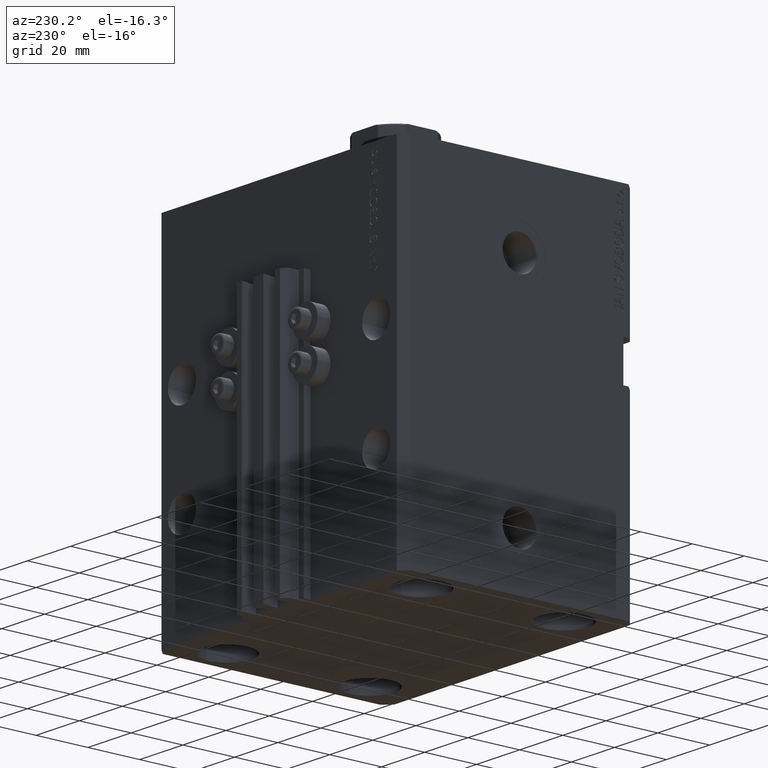
[diagram: clean part render]
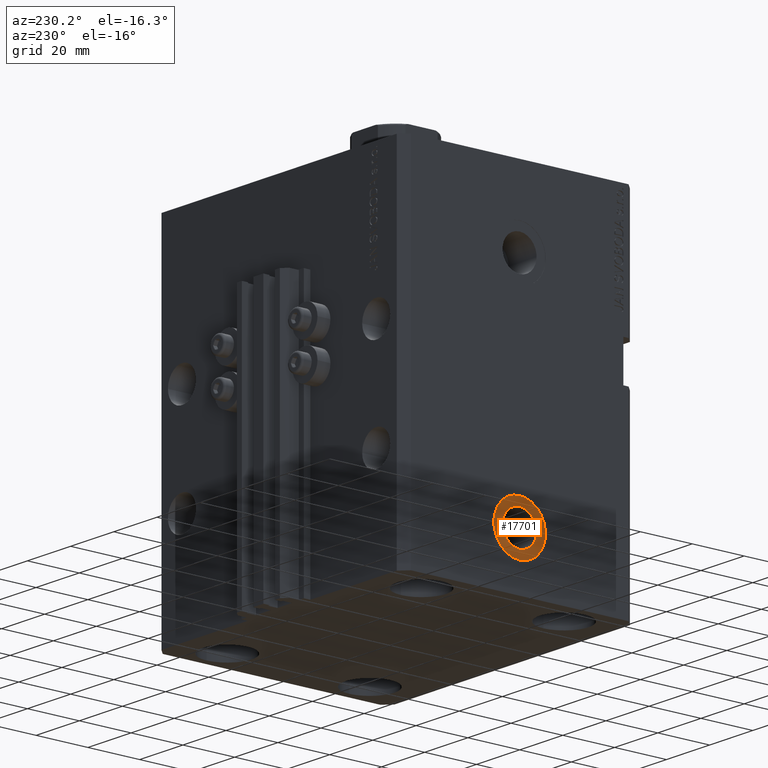
[diagram: same view with one face highlighted and labeled with its STEP entity id]
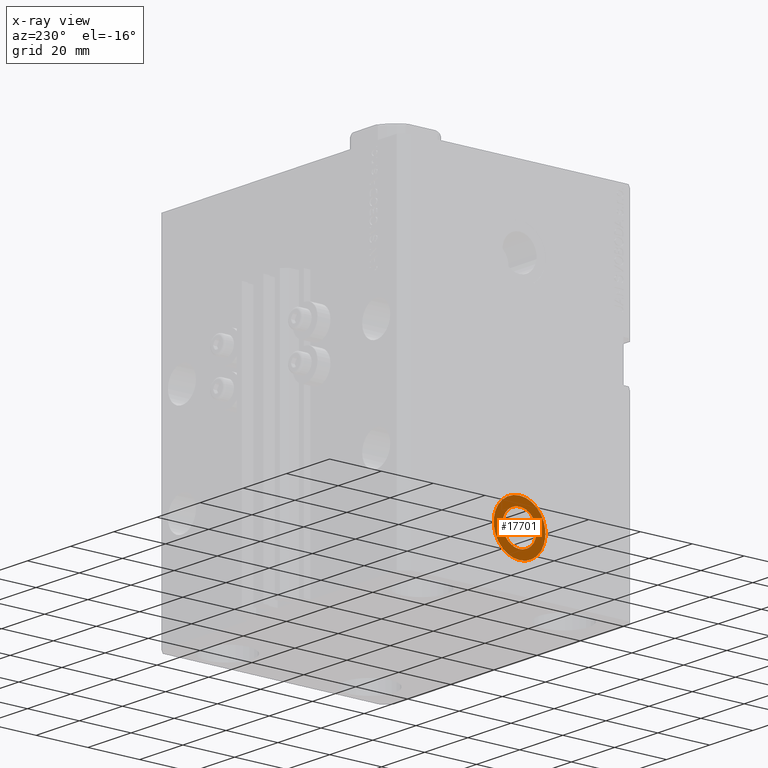
[diagram: x-ray of the same camera — body ghosted, the highlighted face saturated]
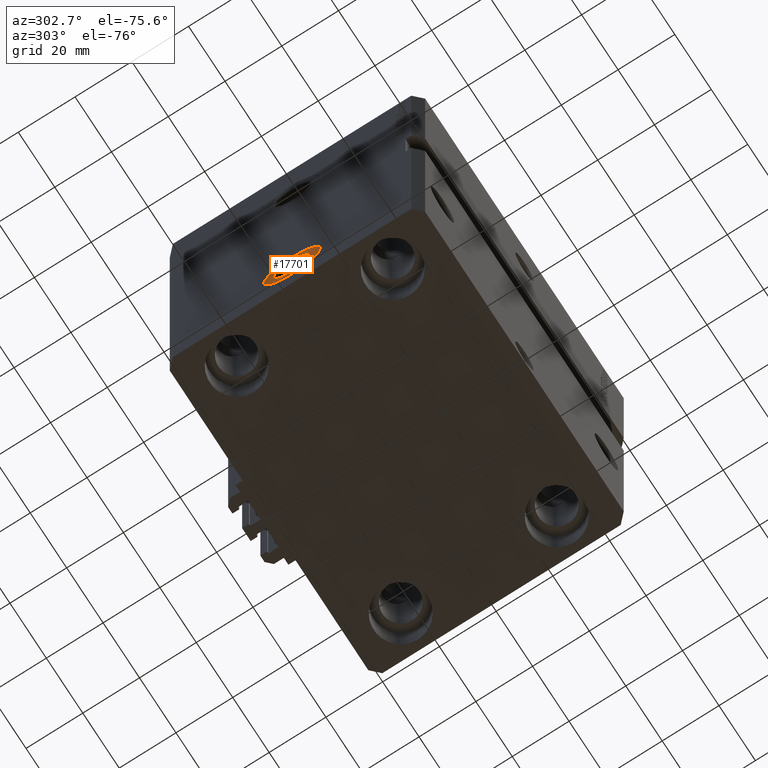
[diagram: same view with one face highlighted and labeled with its STEP entity id]
A machine part, auxiliary view. The second image highlights one B-rep face of the part: STEP entity #17701.
The next image is the same camera in x-ray: the body ghosted, the highlighted face saturated — about 0% of this face is hidden behind the body in this view.
A second angle (auxiliary view) of the same face is appended — the face is thin or edge-on in the first view.
In plain terms, the highlighted planar face has unit normal (-1, 0, 0).
Its self-contained STEP definition (entity closure, byte-faithful):
#1038 = DIRECTION ( 'NONE',  ( -1.000000000000000000, 0.000000000000000000, 0.000000000000000000 ) ) ;
#1917 = VERTEX_POINT ( 'NONE', #36548 ) ;
#2085 = EDGE_CURVE ( 'NONE', #30430, #47679, #30526, .T. ) ;
#2941 = ORIENTED_EDGE ( 'NONE', *, *, #9978, .F. ) ;
#3842 = CARTESIAN_POINT ( 'NONE',  ( -57.39999999999999147, 2.885407566725131245E-16, -104.0000000000000142 ) ) ;
#5645 = DIRECTION ( 'NONE',  ( -1.000000000000000000, 0.000000000000000000, 0.000000000000000000 ) ) ;
#5889 = DIRECTION ( 'NONE',  ( 0.000000000000000000, 0.000000000000000000, 1.000000000000000000 ) ) ;
#9978 = EDGE_CURVE ( 'NONE', #1917, #20350, #38788, .T. ) ;
#10042 = CARTESIAN_POINT ( 'NONE',  ( -57.39999999999999147, 2.885407566725131245E-16, -114.0000000000000000 ) ) ;
#11627 = ORIENTED_EDGE ( 'NONE', *, *, #2085, .T. ) ;
#14076 = FACE_BOUND ( 'NONE', #15202, .T. ) ;
#15113 = EDGE_LOOP ( 'NONE', ( #11627, #41832 ) ) ;
#15202 = EDGE_LOOP ( 'NONE', ( #17028, #2941 ) ) ;
#16216 = AXIS2_PLACEMENT_3D ( 'NONE', #23073, #34507, #38004 ) ;
#16703 = EDGE_CURVE ( 'NONE', #47679, #30430, #35680, .T. ) ;
#17028 = ORIENTED_EDGE ( 'NONE', *, *, #31220, .F. ) ;
#17701 = ADVANCED_FACE ( 'NONE', ( #14076, #21566 ), #29269, .T. ) ;
#18229 = DIRECTION ( 'NONE',  ( 0.000000000000000000, 0.000000000000000000, 1.000000000000000000 ) ) ;
#20350 = VERTEX_POINT ( 'NONE', #22240 ) ;
#21566 = FACE_OUTER_BOUND ( 'NONE', #15113, .T. ) ;
#21727 = DIRECTION ( 'NONE',  ( -1.000000000000000000, 0.000000000000000000, 0.000000000000000000 ) ) ;
#22240 = CARTESIAN_POINT ( 'NONE',  ( -57.39999999999999147, 2.885407566725131245E-16, -107.4200000000000017 ) ) ;
#22897 = AXIS2_PLACEMENT_3D ( 'NONE', #35118, #1038, #43835 ) ;
#23073 = CARTESIAN_POINT ( 'NONE',  ( -57.39999999999999147, 2.885407566725131245E-16, -114.0000000000000000 ) ) ;
#29269 = PLANE ( 'NONE',  #30950 ) ;
#30430 = VERTEX_POINT ( 'NONE', #3842 ) ;
#30526 = CIRCLE ( 'NONE', #16216, 9.999999999999994671 ) ;
#30950 = AXIS2_PLACEMENT_3D ( 'NONE', #44457, #5645, #5889 ) ;
#31220 = EDGE_CURVE ( 'NONE', #20350, #1917, #47311, .T. ) ;
#34507 = DIRECTION ( 'NONE',  ( -1.000000000000000000, 0.000000000000000000, 0.000000000000000000 ) ) ;
#35118 = CARTESIAN_POINT ( 'NONE',  ( -57.39999999999999147, 2.885407566725131245E-16, -114.0000000000000000 ) ) ;
#35680 = CIRCLE ( 'NONE', #41259, 9.999999999999994671 ) ;
#36169 = CARTESIAN_POINT ( 'NONE',  ( -57.39999999999999147, 2.885407566725131245E-16, -114.0000000000000000 ) ) ;
#36548 = CARTESIAN_POINT ( 'NONE',  ( -57.39999999999999147, 1.094358350511471575E-15, -120.5800000000000125 ) ) ;
#36682 = DIRECTION ( 'NONE',  ( 0.000000000000000000, 0.000000000000000000, 1.000000000000000000 ) ) ;
#38004 = DIRECTION ( 'NONE',  ( 0.000000000000000000, 0.000000000000000000, 1.000000000000000000 ) ) ;
#38788 = CIRCLE ( 'NONE', #22897, 6.580000000000002736 ) ;
#40944 = AXIS2_PLACEMENT_3D ( 'NONE', #10042, #47632, #36682 ) ;
#41259 = AXIS2_PLACEMENT_3D ( 'NONE', #36169, #21727, #18229 ) ;
#41832 = ORIENTED_EDGE ( 'NONE', *, *, #16703, .T. ) ;
#43835 = DIRECTION ( 'NONE',  ( 0.000000000000000000, 0.000000000000000000, 1.000000000000000000 ) ) ;
#44457 = CARTESIAN_POINT ( 'NONE',  ( -57.39999999999999147, 2.885407566725131245E-16, -114.0000000000000000 ) ) ;
#45715 = CARTESIAN_POINT ( 'NONE',  ( -57.39999999999999147, 1.513187555819865789E-15, -124.0000000000000000 ) ) ;
#47311 = CIRCLE ( 'NONE', #40944, 6.580000000000002736 ) ;
#47632 = DIRECTION ( 'NONE',  ( -1.000000000000000000, 0.000000000000000000, 0.000000000000000000 ) ) ;
#47679 = VERTEX_POINT ( 'NONE', #45715 ) ;